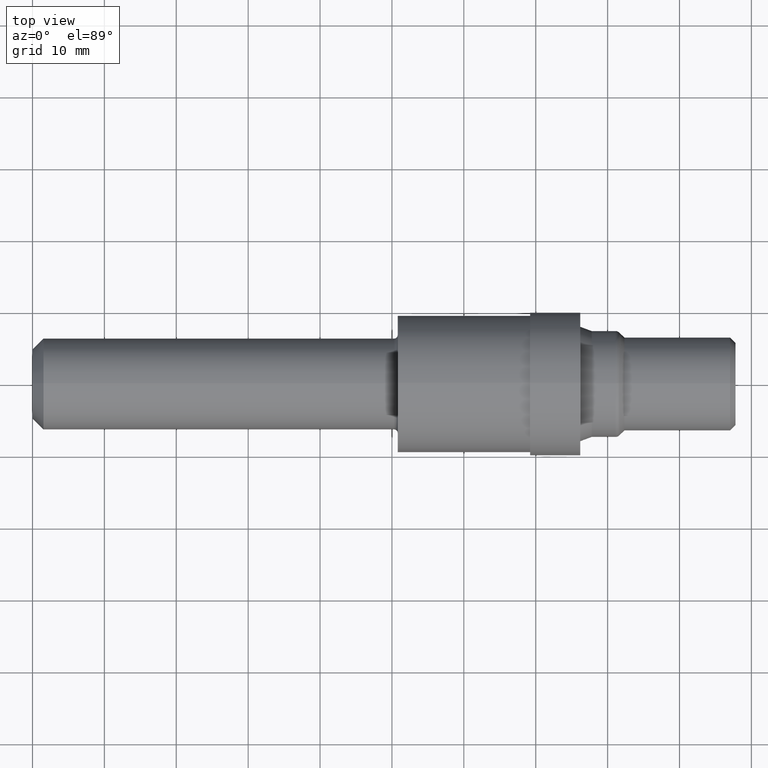
[diagram: clean part render]
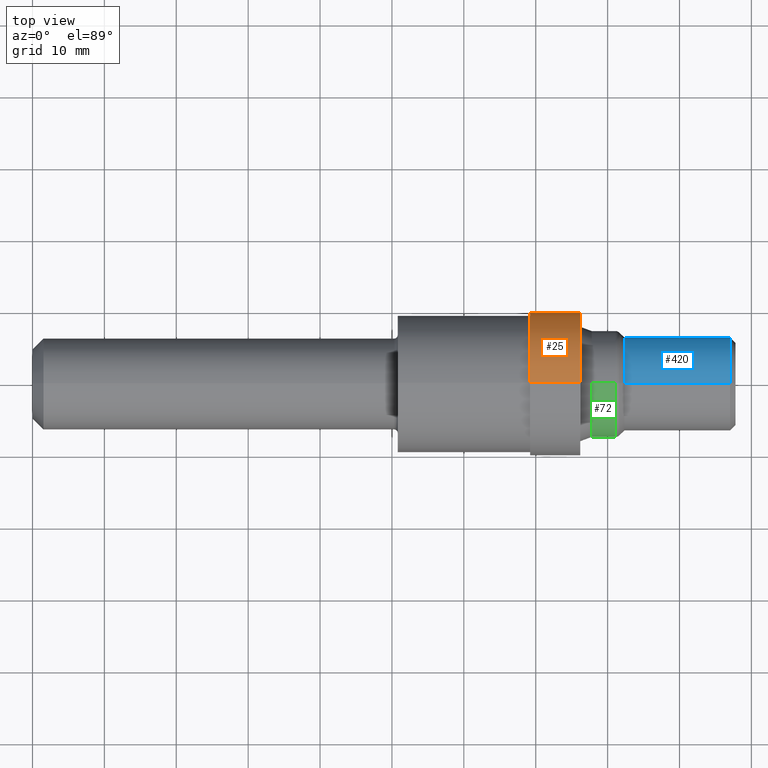
[diagram: same view with three faces highlighted in distinct colors, each labeled with its STEP entity id]
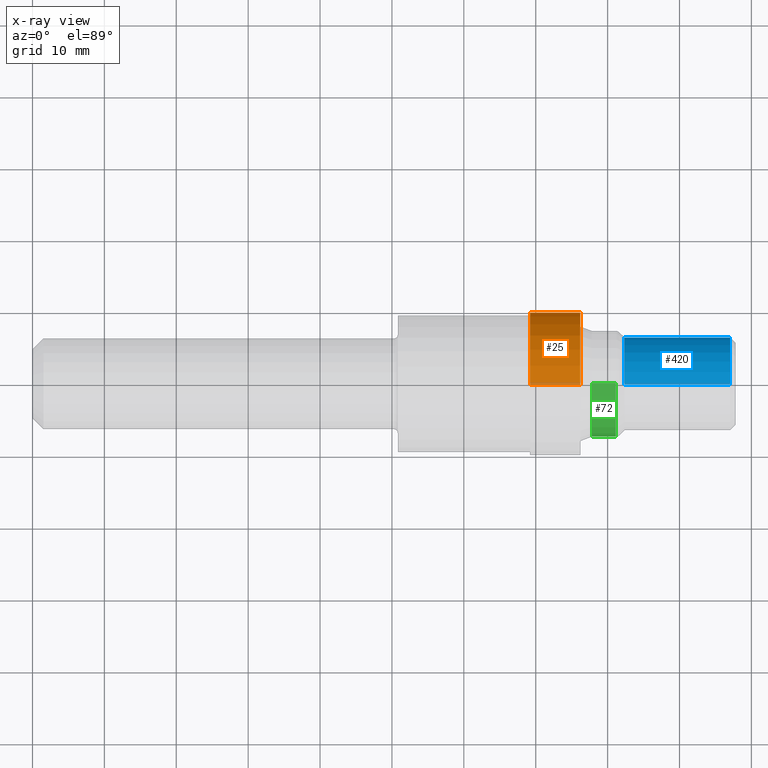
[diagram: x-ray of the same camera — body ghosted, the three highlighted faces saturated]
A machine part, top view with three faces highlighted in distinct colors.
The next image is the same camera in x-ray (body ghosted, the three faces saturated) — at least one of them is partly hidden behind the body in this view.
Their STEP definitions:

[orange] entity #25 — the highlighted cylindrical surface (partial cylindrical patch) has radius 9.9733 mm, axis along (-1, -0, -0).
#8 = CARTESIAN_POINT ( 'NONE',  ( 0.0000000000000000000, 0.0000000000000000000, 0.3926499999999999990 ) ) ;
#23 = CARTESIAN_POINT ( 'NONE',  ( 3.000000000000000444, 0.0000000000000000000, 0.3926499999999999990 ) ) ;
#25 = ADVANCED_FACE ( 'NONE', ( #192 ), #184, .T. ) ;
#74 = DIRECTION ( 'NONE',  ( -1.000000000000000000, -0.0000000000000000000, -0.0000000000000000000 ) ) ;
#83 = VECTOR ( 'NONE', #513, 39.37007874015748143 ) ;
#97 = CARTESIAN_POINT ( 'NONE',  ( 0.0000000000000000000, 0.0000000000000000000, 0.0000000000000000000 ) ) ;
#110 = CARTESIAN_POINT ( 'NONE',  ( 0.0000000000000000000, 4.808575656852082259E-17, -0.3926499999999999990 ) ) ;
#116 = DIRECTION ( 'NONE',  ( -1.000000000000000000, -0.0000000000000000000, -0.0000000000000000000 ) ) ;
#172 = CARTESIAN_POINT ( 'NONE',  ( 2.725000000000000089, 0.0000000000000000000, 0.3926499999999999990 ) ) ;
#184 = CYLINDRICAL_SURFACE ( 'NONE', #567, 0.3926499999999999990 ) ;
#192 = FACE_OUTER_BOUND ( 'NONE', #524, .T. ) ;
#194 = CARTESIAN_POINT ( 'NONE',  ( 3.000000000000000444, 0.0000000000000000000, 0.0000000000000000000 ) ) ;
#259 = ORIENTED_EDGE ( 'NONE', *, *, #571, .F. ) ;
#270 = CARTESIAN_POINT ( 'NONE',  ( 3.000000000000000444, 4.808575656852082259E-17, -0.3926499999999999990 ) ) ;
#300 = VERTEX_POINT ( 'NONE', #270 ) ;
#312 = DIRECTION ( 'NONE',  ( 0.0000000000000000000, 0.0000000000000000000, 1.000000000000000000 ) ) ;
#352 = CIRCLE ( 'NONE', #492, 0.3926499999999999990 ) ;
#385 = CARTESIAN_POINT ( 'NONE',  ( 2.725000000000000089, 4.808575656852082259E-17, -0.3926499999999999990 ) ) ;
#406 = ORIENTED_EDGE ( 'NONE', *, *, #515, .T. ) ;
#418 = EDGE_CURVE ( 'NONE', #690, #663, #598, .T. ) ;
#422 = VERTEX_POINT ( 'NONE', #385 ) ;
#432 = DIRECTION ( 'NONE',  ( 0.0000000000000000000, 0.0000000000000000000, 1.000000000000000000 ) ) ;
#443 = VECTOR ( 'NONE', #116, 39.37007874015748143 ) ;
#459 = DIRECTION ( 'NONE',  ( -1.000000000000000000, -0.0000000000000000000, -0.0000000000000000000 ) ) ;
#468 = DIRECTION ( 'NONE',  ( 0.0000000000000000000, 0.0000000000000000000, 1.000000000000000000 ) ) ;
#492 = AXIS2_PLACEMENT_3D ( 'NONE', #536, #74, #312 ) ;
#502 = CIRCLE ( 'NONE', #639, 0.3926499999999999990 ) ;
#510 = ORIENTED_EDGE ( 'NONE', *, *, #686, .T. ) ;
#513 = DIRECTION ( 'NONE',  ( -1.000000000000000000, -0.0000000000000000000, -0.0000000000000000000 ) ) ;
#515 = EDGE_CURVE ( 'NONE', #300, #422, #609, .T. ) ;
#524 = EDGE_LOOP ( 'NONE', ( #510, #406, #259, #535 ) ) ;
#532 = DIRECTION ( 'NONE',  ( -1.000000000000000000, -0.0000000000000000000, -0.0000000000000000000 ) ) ;
#535 = ORIENTED_EDGE ( 'NONE', *, *, #418, .F. ) ;
#536 = CARTESIAN_POINT ( 'NONE',  ( 2.725000000000000089, 0.0000000000000000000, 0.0000000000000000000 ) ) ;
#567 = AXIS2_PLACEMENT_3D ( 'NONE', #97, #459, #468 ) ;
#571 = EDGE_CURVE ( 'NONE', #663, #422, #352, .T. ) ;
#598 = LINE ( 'NONE', #8, #443 ) ;
#609 = LINE ( 'NONE', #110, #83 ) ;
#639 = AXIS2_PLACEMENT_3D ( 'NONE', #194, #532, #432 ) ;
#663 = VERTEX_POINT ( 'NONE', #172 ) ;
#686 = EDGE_CURVE ( 'NONE', #690, #300, #502, .T. ) ;
#690 = VERTEX_POINT ( 'NONE', #23 ) ;

[blue] entity #420 — the highlighted cylindrical surface (partial cylindrical patch) has radius 6.4935 mm, axis along (-1, -0, -0).
#4 = CARTESIAN_POINT ( 'NONE',  ( 3.820000000000000284, 0.0000000000000000000, 0.0000000000000000000 ) ) ;
#22 = CYLINDRICAL_SURFACE ( 'NONE', #578, 0.2556499999999999884 ) ;
#46 = CIRCLE ( 'NONE', #705, 0.2556499999999999884 ) ;
#56 = DIRECTION ( 'NONE',  ( -1.000000000000000000, -0.0000000000000000000, -0.0000000000000000000 ) ) ;
#65 = VECTOR ( 'NONE', #454, 39.37007874015748143 ) ;
#78 = LINE ( 'NONE', #154, #65 ) ;
#121 = EDGE_CURVE ( 'NONE', #451, #740, #151, .T. ) ;
#140 = VECTOR ( 'NONE', #56, 39.37007874015748143 ) ;
#151 = LINE ( 'NONE', #315, #140 ) ;
#154 = CARTESIAN_POINT ( 'NONE',  ( 0.0000000000000000000, 0.0000000000000000000, 0.2556499999999999884 ) ) ;
#166 = DIRECTION ( 'NONE',  ( -1.000000000000000000, -0.0000000000000000000, -0.0000000000000000000 ) ) ;
#179 = CARTESIAN_POINT ( 'NONE',  ( 0.0000000000000000000, 0.0000000000000000000, 0.0000000000000000000 ) ) ;
#203 = CARTESIAN_POINT ( 'NONE',  ( 3.820000000000000284, 0.0000000000000000000, 0.2556499999999999884 ) ) ;
#223 = EDGE_CURVE ( 'NONE', #674, #614, #78, .T. ) ;
#248 = AXIS2_PLACEMENT_3D ( 'NONE', #4, #298, #580 ) ;
#298 = DIRECTION ( 'NONE',  ( -1.000000000000000000, -0.0000000000000000000, -0.0000000000000000000 ) ) ;
#310 = EDGE_CURVE ( 'NONE', #614, #740, #46, .T. ) ;
#315 = CARTESIAN_POINT ( 'NONE',  ( 0.0000000000000000000, 3.130809542020208383E-17, -0.2556499999999999884 ) ) ;
#319 = EDGE_LOOP ( 'NONE', ( #554, #326, #482, #449 ) ) ;
#326 = ORIENTED_EDGE ( 'NONE', *, *, #121, .T. ) ;
#345 = CIRCLE ( 'NONE', #248, 0.2556499999999999884 ) ;
#346 = CARTESIAN_POINT ( 'NONE',  ( 3.820000000000000284, 3.130809542020208383E-17, -0.2556499999999999884 ) ) ;
#360 = CARTESIAN_POINT ( 'NONE',  ( 3.241249999999999964, 3.130809542020208383E-17, -0.2556499999999999884 ) ) ;
#371 = CARTESIAN_POINT ( 'NONE',  ( 3.241249999999999964, 0.0000000000000000000, 0.0000000000000000000 ) ) ;
#420 = ADVANCED_FACE ( 'NONE', ( #476 ), #22, .T. ) ;
#449 = ORIENTED_EDGE ( 'NONE', *, *, #223, .F. ) ;
#451 = VERTEX_POINT ( 'NONE', #346 ) ;
#454 = DIRECTION ( 'NONE',  ( -1.000000000000000000, -0.0000000000000000000, -0.0000000000000000000 ) ) ;
#471 = DIRECTION ( 'NONE',  ( 0.0000000000000000000, 0.0000000000000000000, 1.000000000000000000 ) ) ;
#476 = FACE_OUTER_BOUND ( 'NONE', #319, .T. ) ;
#482 = ORIENTED_EDGE ( 'NONE', *, *, #310, .F. ) ;
#554 = ORIENTED_EDGE ( 'NONE', *, *, #616, .T. ) ;
#578 = AXIS2_PLACEMENT_3D ( 'NONE', #179, #688, #722 ) ;
#580 = DIRECTION ( 'NONE',  ( 0.0000000000000000000, 0.0000000000000000000, 1.000000000000000000 ) ) ;
#614 = VERTEX_POINT ( 'NONE', #689 ) ;
#616 = EDGE_CURVE ( 'NONE', #674, #451, #345, .T. ) ;
#674 = VERTEX_POINT ( 'NONE', #203 ) ;
#688 = DIRECTION ( 'NONE',  ( -1.000000000000000000, -0.0000000000000000000, -0.0000000000000000000 ) ) ;
#689 = CARTESIAN_POINT ( 'NONE',  ( 3.241249999999999964, 0.0000000000000000000, 0.2556499999999999884 ) ) ;
#705 = AXIS2_PLACEMENT_3D ( 'NONE', #371, #166, #471 ) ;
#722 = DIRECTION ( 'NONE',  ( 0.0000000000000000000, 0.0000000000000000000, 1.000000000000000000 ) ) ;
#740 = VERTEX_POINT ( 'NONE', #360 ) ;

[green] entity #72 — the highlighted cylindrical surface (partial cylindrical patch) has radius 7.4016 mm, axis along (-1, -0, -0).
#31 = CIRCLE ( 'NONE', #234, 0.2913999999999999924 ) ;
#54 = LINE ( 'NONE', #354, #334 ) ;
#72 = ADVANCED_FACE ( 'NONE', ( #182 ), #161, .T. ) ;
#77 = CARTESIAN_POINT ( 'NONE',  ( 3.193073593128807008, 3.568620772715386493E-17, -0.2913999999999999369 ) ) ;
#91 = AXIS2_PLACEMENT_3D ( 'NONE', #484, #497, #480 ) ;
#98 = EDGE_CURVE ( 'NONE', #242, #254, #199, .T. ) ;
#158 = DIRECTION ( 'NONE',  ( -1.000000000000000000, -0.0000000000000000000, -0.0000000000000000000 ) ) ;
#161 = CYLINDRICAL_SURFACE ( 'NONE', #91, 0.2913999999999999924 ) ;
#182 = FACE_OUTER_BOUND ( 'NONE', #493, .T. ) ;
#199 = CIRCLE ( 'NONE', #612, 0.2913999999999999924 ) ;
#234 = AXIS2_PLACEMENT_3D ( 'NONE', #430, #343, #455 ) ;
#242 = VERTEX_POINT ( 'NONE', #742 ) ;
#254 = VERTEX_POINT ( 'NONE', #353 ) ;
#261 = EDGE_CURVE ( 'NONE', #583, #433, #31, .T. ) ;
#334 = VECTOR ( 'NONE', #727, 39.37007874015748143 ) ;
#343 = DIRECTION ( 'NONE',  ( -1.000000000000000000, -0.0000000000000000000, -0.0000000000000000000 ) ) ;
#353 = CARTESIAN_POINT ( 'NONE',  ( 3.062500000000000444, 0.0000000000000000000, 0.2913999999999999924 ) ) ;
#354 = CARTESIAN_POINT ( 'NONE',  ( 0.0000000000000000000, 0.0000000000000000000, 0.2913999999999999924 ) ) ;
#415 = DIRECTION ( 'NONE',  ( 0.0000000000000000000, 0.0000000000000000000, 1.000000000000000000 ) ) ;
#426 = CARTESIAN_POINT ( 'NONE',  ( 3.062500000000000444, 0.0000000000000000000, 0.0000000000000000000 ) ) ;
#429 = DIRECTION ( 'NONE',  ( -1.000000000000000000, -0.0000000000000000000, -0.0000000000000000000 ) ) ;
#430 = CARTESIAN_POINT ( 'NONE',  ( 3.193073593128807008, 0.0000000000000000000, 0.0000000000000000000 ) ) ;
#433 = VERTEX_POINT ( 'NONE', #695 ) ;
#455 = DIRECTION ( 'NONE',  ( 0.0000000000000000000, 0.0000000000000000000, 1.000000000000000000 ) ) ;
#480 = DIRECTION ( 'NONE',  ( 0.0000000000000000000, 0.0000000000000000000, 1.000000000000000000 ) ) ;
#484 = CARTESIAN_POINT ( 'NONE',  ( 0.0000000000000000000, 0.0000000000000000000, 0.0000000000000000000 ) ) ;
#493 = EDGE_LOOP ( 'NONE', ( #569, #558, #661, #666 ) ) ;
#497 = DIRECTION ( 'NONE',  ( -1.000000000000000000, -0.0000000000000000000, -0.0000000000000000000 ) ) ;
#503 = EDGE_CURVE ( 'NONE', #583, #242, #667, .T. ) ;
#514 = VECTOR ( 'NONE', #158, 39.37007874015748143 ) ;
#530 = EDGE_CURVE ( 'NONE', #433, #254, #54, .T. ) ;
#558 = ORIENTED_EDGE ( 'NONE', *, *, #261, .T. ) ;
#569 = ORIENTED_EDGE ( 'NONE', *, *, #503, .F. ) ;
#583 = VERTEX_POINT ( 'NONE', #77 ) ;
#612 = AXIS2_PLACEMENT_3D ( 'NONE', #426, #429, #415 ) ;
#661 = ORIENTED_EDGE ( 'NONE', *, *, #530, .T. ) ;
#666 = ORIENTED_EDGE ( 'NONE', *, *, #98, .F. ) ;
#667 = LINE ( 'NONE', #734, #514 ) ;
#695 = CARTESIAN_POINT ( 'NONE',  ( 3.193073593128807008, 0.0000000000000000000, 0.2913999999999999369 ) ) ;
#727 = DIRECTION ( 'NONE',  ( -1.000000000000000000, -0.0000000000000000000, -0.0000000000000000000 ) ) ;
#734 = CARTESIAN_POINT ( 'NONE',  ( 0.0000000000000000000, 3.568620772715387109E-17, -0.2913999999999999924 ) ) ;
#742 = CARTESIAN_POINT ( 'NONE',  ( 3.062500000000000444, 3.568620772715387109E-17, -0.2913999999999999924 ) ) ;